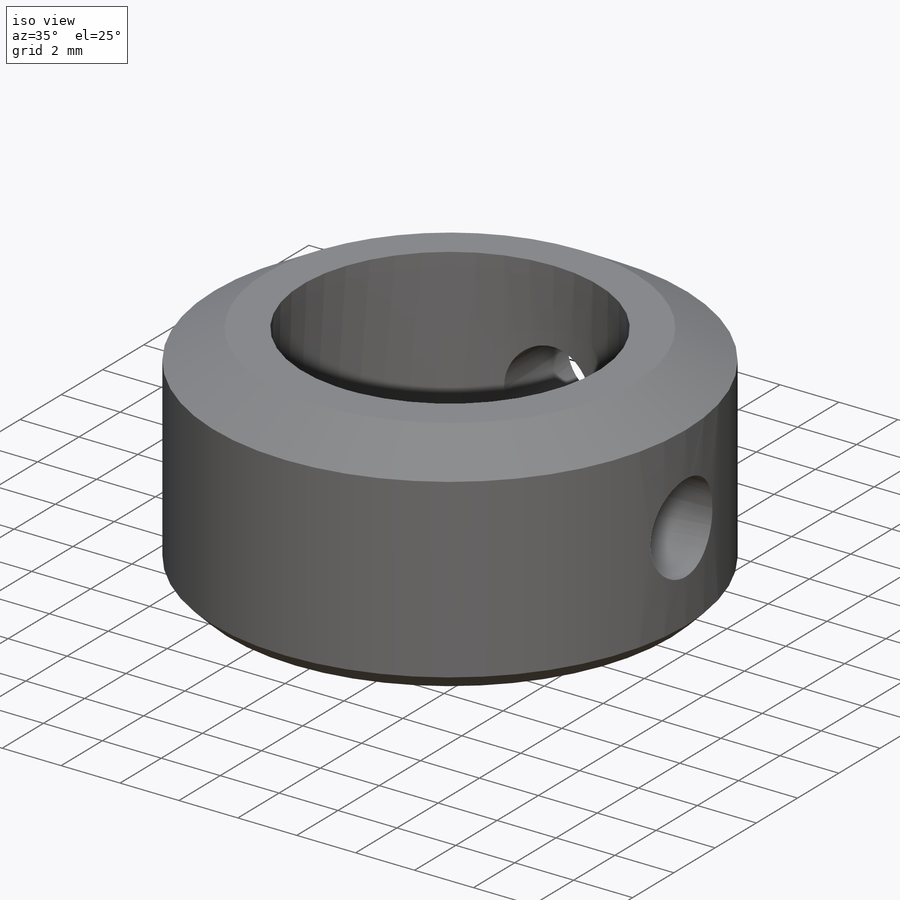
[diagram: iso view]
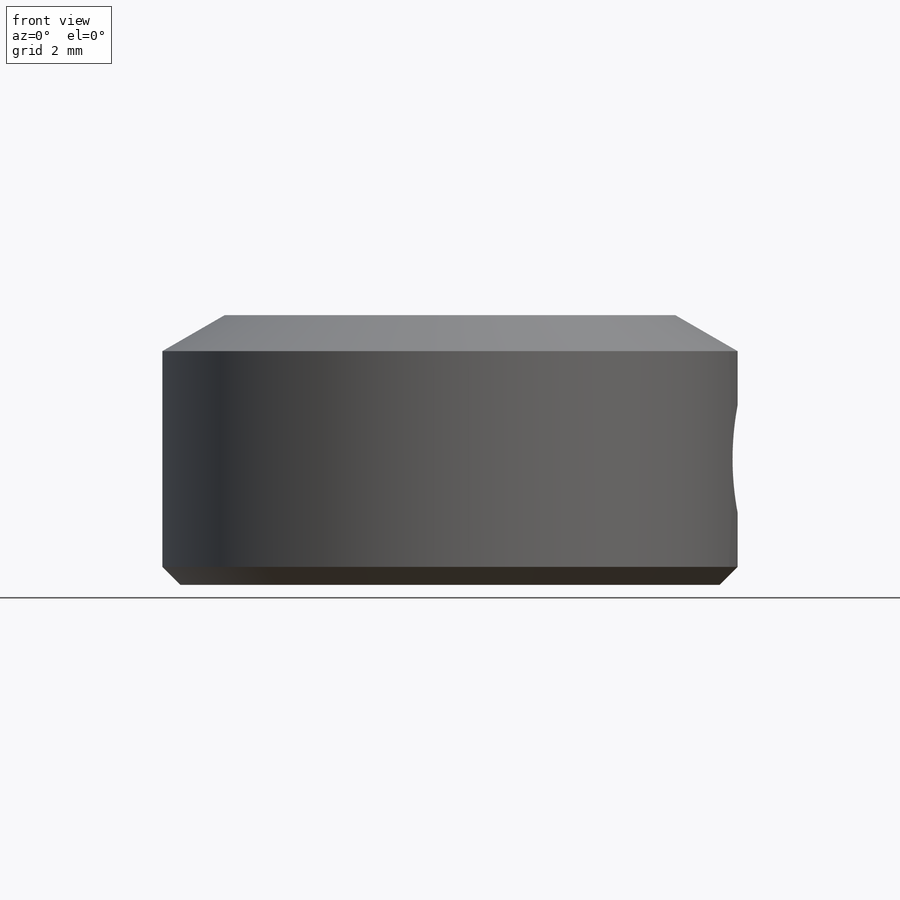
[diagram: front view]
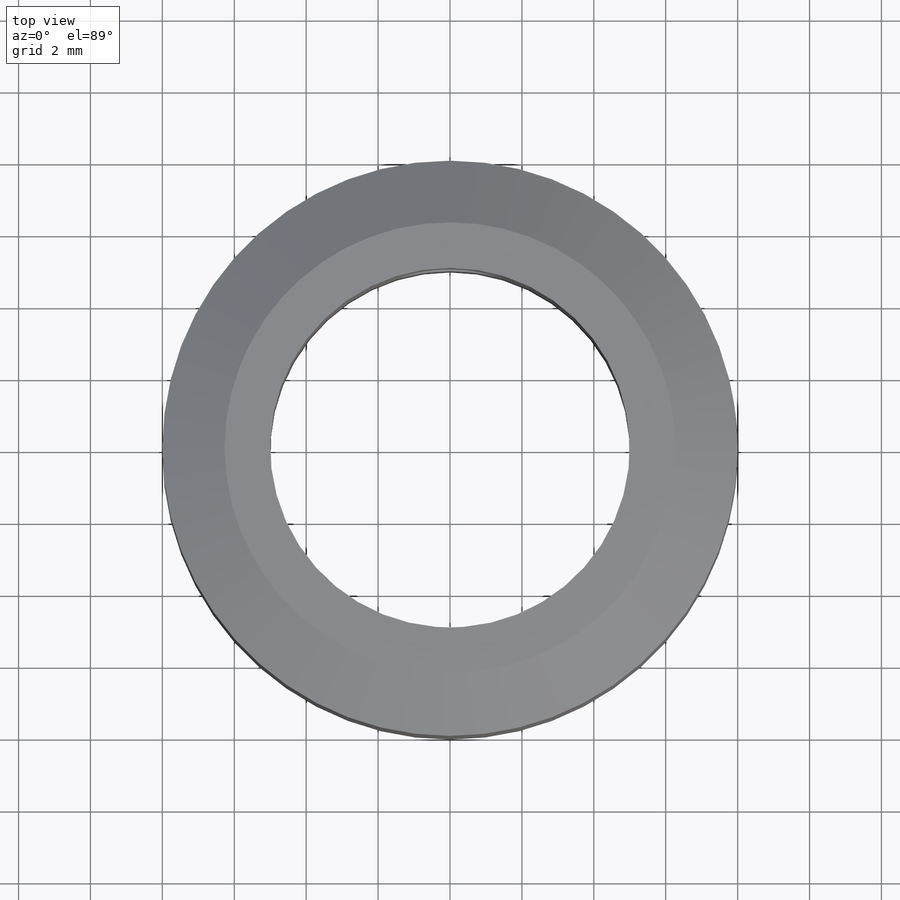
[diagram: top view]
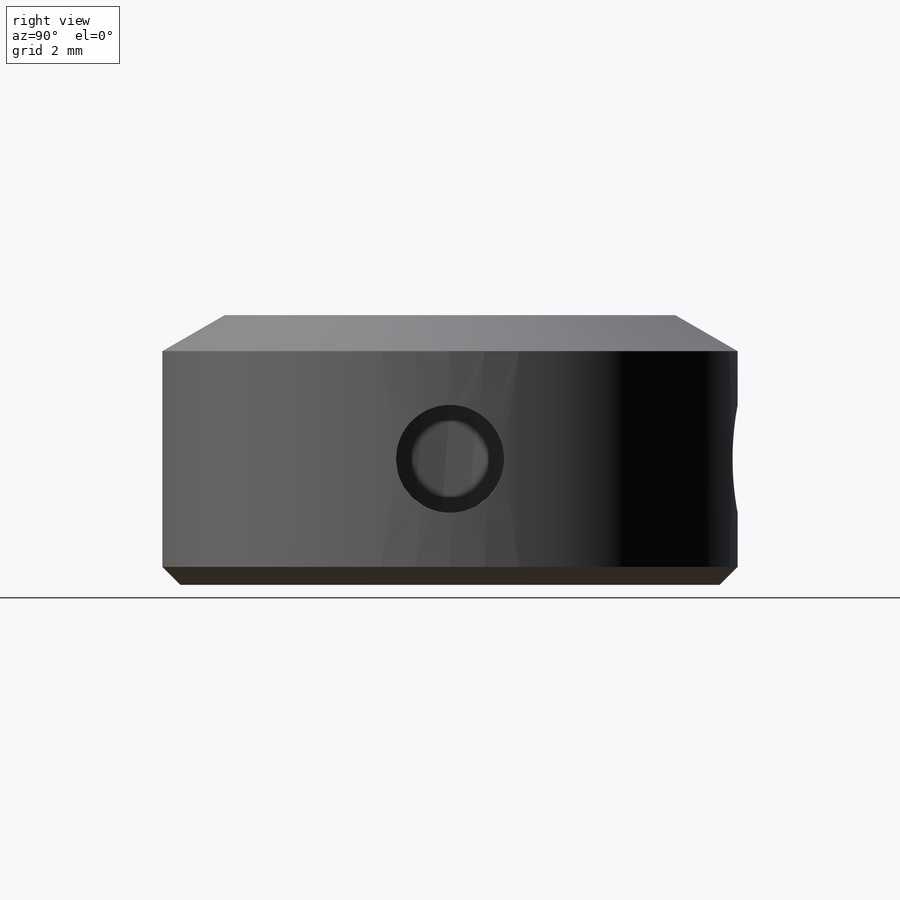
[diagram: right view]
SOLIDWORKS PART (.sldprt)
format: sldprt  version: not decoded by parser v0  size: 275,456 bytes
history: native  units: mm
features: chamfer x3, sketch x2, material x1, extrude x1, plane x1, cut_extrude x1, pattern_circular x1 (+11 scaffold rows collapsed)
feature tree (21):
  scaffold x11  (default folders/planes/origin — collapsed)
  material  "1060 Alloy"
  sketch  "Sketch1"  dims[D1=10.0mm D2=16.0mm]
  extrude  "Boss-Extrude1"  Depth=7.5mm
  chamfer  "Chamfer1"  Distance=1mm Angle=60deg
  chamfer  "Chamfer2"  Distance=0.5mm Angle=45deg
  chamfer  "Chamfer3"  Distance=0.2mm Angle=45deg
  plane  "Plane1"
  sketch  "Sketch2"  dims[D1=3.0mm D2=3.5mm]
  cut_extrude  "Cut-Extrude1"  [1 undecoded]
  pattern_circular  "CirPattern1"  Count=2 Angle=90deg
decode coverage: 7 of 8 modeling features carry decoded parameters
note: 1 parameter value undecoded
note: suppression state not decoded; provenance and decode notes live in map.json
